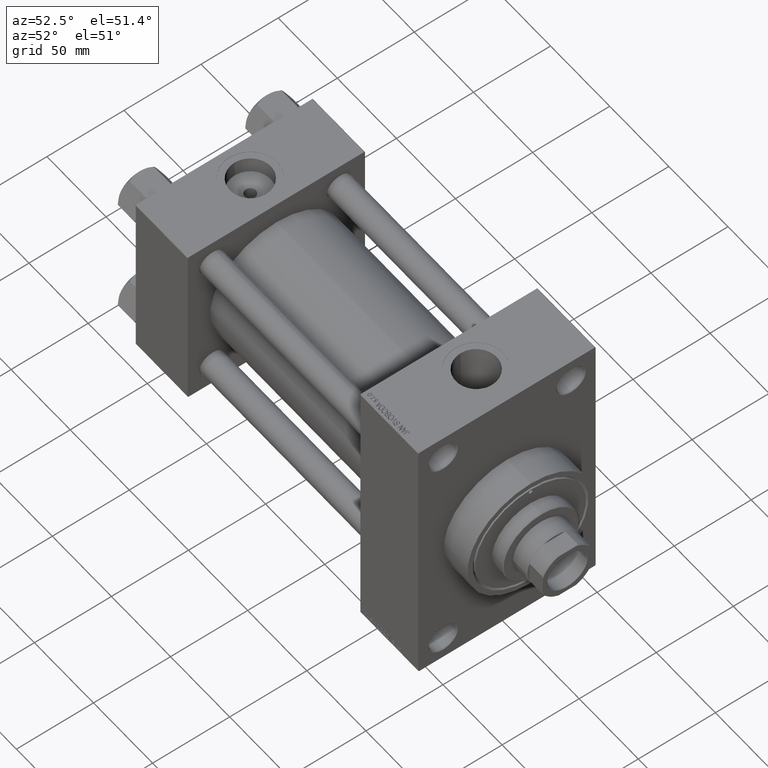
[diagram: clean part render]
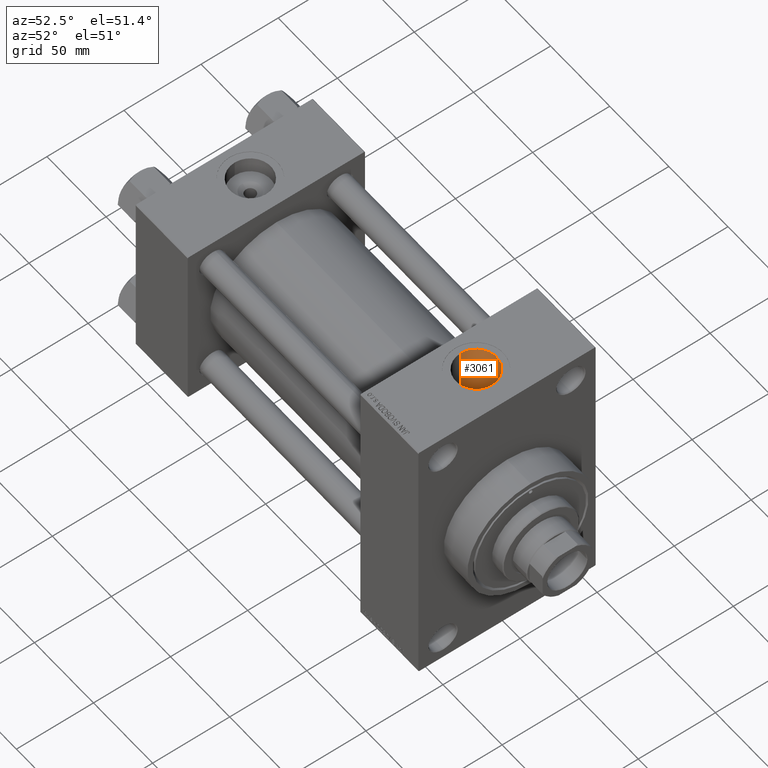
[diagram: same view with one face highlighted and labeled with its STEP entity id]
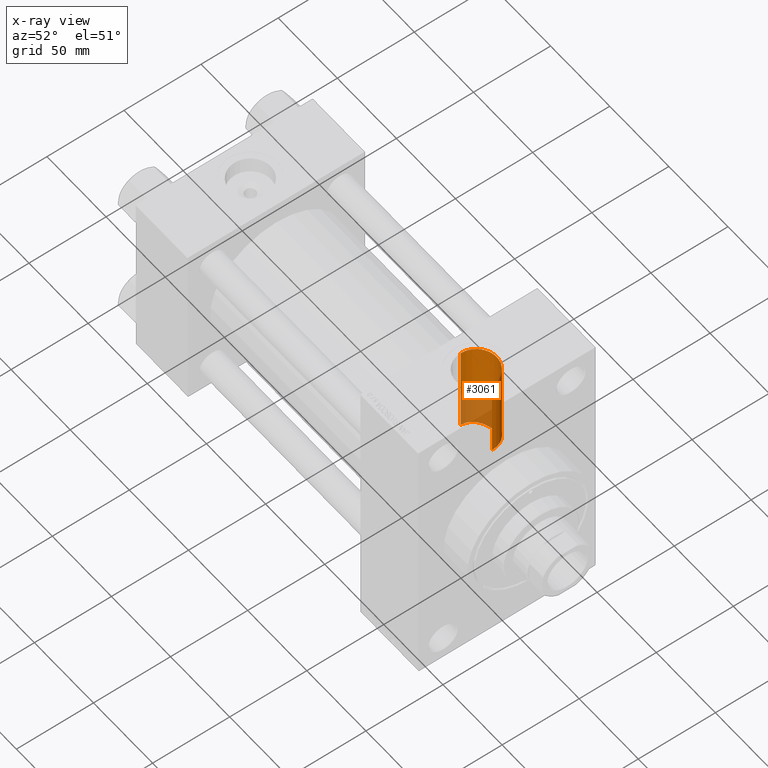
[diagram: x-ray of the same camera — body ghosted, the highlighted face saturated]
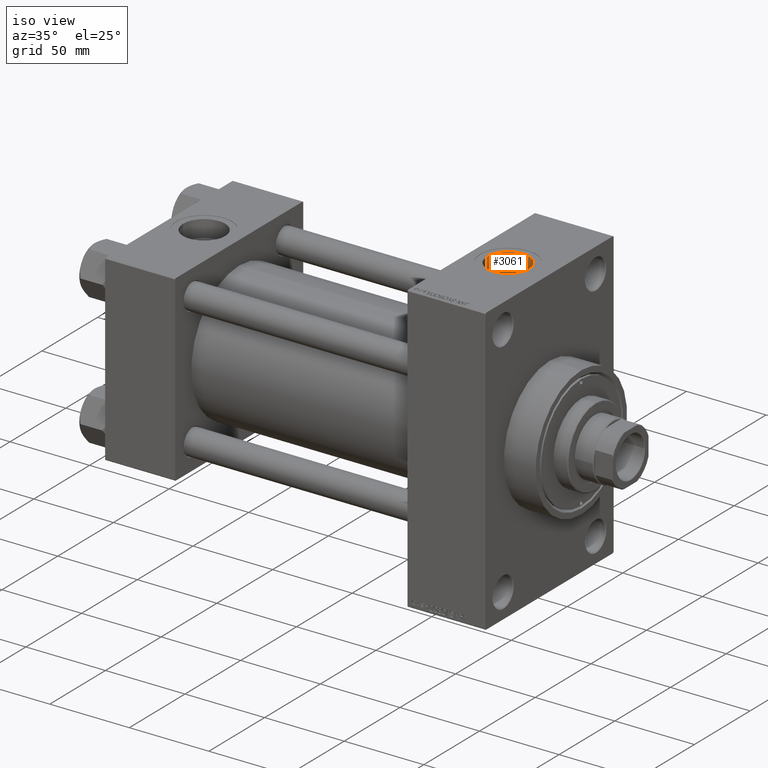
[diagram: same view with one face highlighted and labeled with its STEP entity id]
A machine part, auxiliary view. The second image highlights one B-rep face of the part: STEP entity #3061.
The next image is the same camera in x-ray: the body ghosted, the highlighted face saturated — about 32% of this face is hidden behind the body in this view.
A second angle (iso view) of the same face is appended — the face is thin or edge-on in the first view.
In plain terms, the highlighted cylindrical surface (edge-blend (fillet) strip) has radius 13.22 mm, axis along (0, 0, -1).
Its self-contained STEP definition (entity closure, byte-faithful):
#707 = AXIS2_PLACEMENT_3D ( 'NONE', #43667, #2758, #2994 ) ;
#1189 = CARTESIAN_POINT ( 'NONE',  ( 202.0260244560768399, 7.434870375886687199, 29.59044782374041205 ) ) ;
#2268 = FACE_OUTER_BOUND ( 'NONE', #31749, .T. ) ;
#2705 = CARTESIAN_POINT ( 'NONE',  ( 226.0893087182807903, 1.892035420910294308, 35.95216273564662401 ) ) ;
#2758 = DIRECTION ( 'NONE',  ( -0.000000000000000000, -0.000000000000000000, -1.000000000000000000 ) ) ;
#2994 = DIRECTION ( 'NONE',  ( 1.000000000000000000, 0.000000000000000000, 0.000000000000000000 ) ) ;
#3061 = ADVANCED_FACE ( 'NONE', ( #2268 ), #5890, .F. ) ;
#3654 = CARTESIAN_POINT ( 'NONE',  ( 219.2649626807106245, 11.66558850424321925, 34.06003150599317308 ) ) ;
#5890 = CYLINDRICAL_SURFACE ( 'NONE', #7506, 13.22000000000000952 ) ;
#6193 = ORIENTED_EDGE ( 'NONE', *, *, #19847, .T. ) ;
#6338 = CARTESIAN_POINT ( 'NONE',  ( 226.1379817546421407, 1.518265865167174322, 35.96994912351960494 ) ) ;
#7453 = ORIENTED_EDGE ( 'NONE', *, *, #44952, .F. ) ;
#7506 = AXIS2_PLACEMENT_3D ( 'NONE', #28869, #42940, #28170 ) ;
#7515 = LINE ( 'NONE', #40193, #31736 ) ;
#8272 = CARTESIAN_POINT ( 'NONE',  ( 199.7799999999999443, -1.086087741481131350E-14, 89.79999999999998295 ) ) ;
#8934 = CARTESIAN_POINT ( 'NONE',  ( 204.2896176093950089, 9.956384615881514577, 28.83096279477898349 ) ) ;
#9178 = CARTESIAN_POINT ( 'NONE',  ( 200.6830193899776305, 4.827070409900215076, 30.11922814116230640 ) ) ;
#9211 = CIRCLE ( 'NONE', #707, 13.22000000000000952 ) ;
#9214 = VERTEX_POINT ( 'NONE', #45796 ) ;
#10218 = CARTESIAN_POINT ( 'NONE',  ( 221.9855853527146508, 9.703877399782225410, 34.66842035655219689 ) ) ;
#10442 = CARTESIAN_POINT ( 'NONE',  ( 224.6983450057126959, 6.168928695871307433, 35.46904263421719605 ) ) ;
#10683 = CARTESIAN_POINT ( 'NONE',  ( 216.4867003901545104, 12.77473711426742753, 33.65761171941715446 ) ) ;
#12104 = CARTESIAN_POINT ( 'NONE',  ( 200.3594029954052189, 3.901785162874678026, 30.25300952143917144 ) ) ;
#12581 = CARTESIAN_POINT ( 'NONE',  ( 201.5110741800254175, 6.613878971456276012, 29.78798023624083768 ) ) ;
#12816 = CARTESIAN_POINT ( 'NONE',  ( 199.7799999999999443, 3.735152335644797090E-15, 30.50000000000000000 ) ) ;
#13045 = CARTESIAN_POINT ( 'NONE',  ( 215.7400000000000091, 12.93293470176045723, 27.62225914004863725 ) ) ;
#13053 = CARTESIAN_POINT ( 'NONE',  ( 203.9320074090819332, 9.632030437268104706, 28.94142039359464036 ) ) ;
#13988 = LINE ( 'NONE', #35997, #30147 ) ;
#14086 = CARTESIAN_POINT ( 'NONE',  ( 222.2544909056830136, 9.447833359205578319, 34.73924717178599053 ) ) ;
#14296 = DIRECTION ( 'NONE',  ( 0.000000000000000000, 0.000000000000000000, -1.000000000000000000 ) ) ;
#16673 = CARTESIAN_POINT ( 'NONE',  ( 200.8710626762528761, 5.282033915368379517, 30.04254330308662446 ) ) ;
#17475 = CARTESIAN_POINT ( 'NONE',  ( 215.7400000000000091, 12.93293470176045545, 33.59671412504503252 ) ) ;
#17943 = CARTESIAN_POINT ( 'NONE',  ( 226.2199999999999704, 4.408731805096607676E-15, 36.00000000000000000 ) ) ;
#18534 = VERTEX_POINT ( 'NONE', #31784 ) ;
#18755 = B_SPLINE_CURVE_WITH_KNOTS ( 'NONE', 3,
 ( #17475, #10683, #36821, #43615, #3654, #25446, #39513, #10218, #14086, #35868, #32004, #21337, #21819, #10442, #24747, #25207, #40458, #21575, #36334, #2705, #6338, #47487, #21107, #17943 ),
 .UNSPECIFIED., .F., .F.,
 ( 4, 2, 2, 2, 2, 2, 2, 2, 2, 2, 2, 4 ),
 ( 0.000000000000000000, 0.002262540966026108449, 0.004525081932052216899, 0.006787622898078324481, 0.007918893381091347480, 0.009050163864104371347, 0.01131270483013046245, 0.01244397531314350540, 0.01357524579615655008, 0.01583778676218267067, 0.01696905724519573097, 0.01810032772820879127 ),
 .UNSPECIFIED. ) ;
#18999 = VERTEX_POINT ( 'NONE', #30476 ) ;
#19358 = CARTESIAN_POINT ( 'NONE',  ( 205.4271501200176431, 10.84687044312923021, 28.50745100355763384 ) ) ;
#19593 = CARTESIAN_POINT ( 'NONE',  ( 199.8074965746004636, 0.9872482238805236898, 30.48805017778671100 ) ) ;
#19822 = CARTESIAN_POINT ( 'NONE',  ( 211.8033419719260735, 13.17521242515511304, 27.50761348180683541 ) ) ;
#19847 = EDGE_CURVE ( 'NONE', #9214, #36160, #41770, .T. ) ;
#21107 = CARTESIAN_POINT ( 'NONE',  ( 226.2199999999999136, 0.3819698288429368427, 35.99999999999999289 ) ) ;
#21337 = CARTESIAN_POINT ( 'NONE',  ( 223.7312113704627734, 7.757108125705367563, 35.15943117783078975 ) ) ;
#21565 = EDGE_CURVE ( 'NONE', #43772, #18999, #18755, .T. ) ;
#21575 = CARTESIAN_POINT ( 'NONE',  ( 225.7051556392588338, 3.731388303156857766, 35.81334052950152369 ) ) ;
#21819 = CARTESIAN_POINT ( 'NONE',  ( 224.1498648550291932, 7.141648424859568856, 35.29067191690106142 ) ) ;
#22712 = ORIENTED_EDGE ( 'NONE', *, *, #38599, .T. ) ;
#22989 = CARTESIAN_POINT ( 'NONE',  ( 213.7777193278500079, 13.20633922326214460, 27.49264203546941943 ) ) ;
#23702 = CARTESIAN_POINT ( 'NONE',  ( 206.6661582615323312, 11.61426874580969049, 28.20310319464545401 ) ) ;
#23947 = CARTESIAN_POINT ( 'NONE',  ( 199.7799999999999443, 0.4930897905089567379, 30.50000000000001066 ) ) ;
#24747 = CARTESIAN_POINT ( 'NONE',  ( 224.8678405391318904, 5.836387716606529885, 35.52542343625400889 ) ) ;
#25207 = CARTESIAN_POINT ( 'NONE',  ( 225.1796393711019277, 5.154167772853361029, 35.63079688237382925 ) ) ;
#25446 = CARTESIAN_POINT ( 'NONE',  ( 220.5493998682713084, 10.87852352895255414, 34.31951962323490335 ) ) ;
#26581 = ORIENTED_EDGE ( 'NONE', *, *, #21565, .T. ) ;
#27568 = CARTESIAN_POINT ( 'NONE',  ( 214.7607663062245251, 13.11151955524789159, 27.53798861069348547 ) ) ;
#27808 = CARTESIAN_POINT ( 'NONE',  ( 207.9827127633823807, 12.27015841204416979, 27.92701712990832874 ) ) ;
#28170 = DIRECTION ( 'NONE',  ( -1.000000000000000000, 0.000000000000000000, 0.000000000000000000 ) ) ;
#28869 = CARTESIAN_POINT ( 'NONE',  ( 212.9999999999999716, -1.086087741481131350E-14, 112.7999999999999829 ) ) ;
#29492 = DIRECTION ( 'NONE',  ( 0.000000000000000000, 0.000000000000000000, -1.000000000000000000 ) ) ;
#29991 = CARTESIAN_POINT ( 'NONE',  ( 215.7400000000000091, 12.93293470176045545, 33.59671412504503252 ) ) ;
#30147 = VECTOR ( 'NONE', #32365, 1000.000000000000000 ) ;
#30207 = LINE ( 'NONE', #44989, #41619 ) ;
#30476 = CARTESIAN_POINT ( 'NONE',  ( 226.2199999999999704, 4.408731805096607676E-15, 36.00000000000000000 ) ) ;
#30723 = CARTESIAN_POINT ( 'NONE',  ( 203.2493793498785521, 8.940352169284503603, 29.16250894268882377 ) ) ;
#30963 = CARTESIAN_POINT ( 'NONE',  ( 210.8119409645370581, 13.04724532387755076, 27.56854024737252118 ) ) ;
#31430 = CARTESIAN_POINT ( 'NONE',  ( 202.9260598174467134, 8.574286465039147487, 29.27263374885118452 ) ) ;
#31697 = ORIENTED_EDGE ( 'NONE', *, *, #40003, .F. ) ;
#31736 = VECTOR ( 'NONE', #14296, 1000.000000000000000 ) ;
#31749 = EDGE_LOOP ( 'NONE', ( #43726, #31697, #22712, #6193, #7453, #26581 ) ) ;
#31784 = CARTESIAN_POINT ( 'NONE',  ( 226.2199999999999704, -9.241894346338509984E-15, 89.79999999999998295 ) ) ;
#32004 = CARTESIAN_POINT ( 'NONE',  ( 223.0210832298416506, 8.630590761265704458, 34.95143037011762033 ) ) ;
#32365 = DIRECTION ( 'NONE',  ( 0.000000000000000000, 0.000000000000000000, -1.000000000000000000 ) ) ;
#34589 = CARTESIAN_POINT ( 'NONE',  ( 212.2979727381282657, 13.21057355757992724, 27.49055875873991539 ) ) ;
#34836 = CARTESIAN_POINT ( 'NONE',  ( 200.2233236804503065, 3.430416358514380537, 30.31031417239465497 ) ) ;
#35074 = CARTESIAN_POINT ( 'NONE',  ( 215.2536187678446993, 13.03598049970484318, 27.57401237756086942 ) ) ;
#35868 = CARTESIAN_POINT ( 'NONE',  ( 222.7718099334104522, 8.911727539146765409, 34.88062444271563578 ) ) ;
#35997 = CARTESIAN_POINT ( 'NONE',  ( 215.7400000000000091, 12.93293470176045545, 112.7999999999999829 ) ) ;
#36160 = VERTEX_POINT ( 'NONE', #13045 ) ;
#36334 = CARTESIAN_POINT ( 'NONE',  ( 225.8962416663182466, 3.003490287928876956, 35.88217189229082038 ) ) ;
#36821 = CARTESIAN_POINT ( 'NONE',  ( 217.2060821151613368, 12.55531642788234414, 33.74093801992368924 ) ) ;
#37751 = CARTESIAN_POINT ( 'NONE',  ( 215.7400000000000091, 12.93293470176045723, 27.62225914004863725 ) ) ;
#38000 = CARTESIAN_POINT ( 'NONE',  ( 200.0034013176459382, 2.469744289827837669, 30.40367189608674181 ) ) ;
#38301 = VERTEX_POINT ( 'NONE', #8272 ) ;
#38599 = EDGE_CURVE ( 'NONE', #38301, #9214, #30207, .T. ) ;
#38706 = CARTESIAN_POINT ( 'NONE',  ( 206.2405905081904791, 11.37158902866329413, 28.30223178644141058 ) ) ;
#39513 = CARTESIAN_POINT ( 'NONE',  ( 221.1482271659915000, 10.43671964436601129, 34.45770319535726856 ) ) ;
#40003 = EDGE_CURVE ( 'NONE', #38301, #18534, #9211, .T. ) ;
#40193 = CARTESIAN_POINT ( 'NONE',  ( 226.2199999999999704, -9.241894346338509984E-15, 112.7999999999999829 ) ) ;
#40458 = CARTESIAN_POINT ( 'NONE',  ( 225.3223465543050565, 4.803346231252589860, 35.67993160896550364 ) ) ;
#41619 = VECTOR ( 'NONE', #29492, 1000.000000000000000 ) ;
#41770 = B_SPLINE_CURVE_WITH_KNOTS ( 'NONE', 3,
 ( #12816, #23947, #19593, #45741, #38000, #34836, #12104, #9178, #16673, #12581, #1189, #31430, #30723, #13053, #8934, #45263, #19358, #38706, #23702, #27808, #42334, #41868, #30963, #19822, #34589, #42586, #22989, #27568, #35074, #37751 ),
 .UNSPECIFIED., .F., .F.,
 ( 4, 2, 2, 2, 2, 2, 2, 2, 2, 2, 2, 2, 2, 2, 4 ),
 ( 0.04185757538675116685, 0.04333653936425789499, 0.04481550334176461620, 0.04629446731927134434, 0.04777343129677807249, 0.05073135925179152184, 0.05221032322929827774, 0.05368928720680501976, 0.05516825118431177566, 0.05664721516181852462, 0.05960514311683194622, 0.06108410709433870212, 0.06256307107184545802, 0.06404203504935221392, 0.06552099902685896982 ),
 .UNSPECIFIED. ) ;
#41868 = CARTESIAN_POINT ( 'NONE',  ( 210.3256342958764264, 12.95594869095346091, 27.61177267963251580 ) ) ;
#42334 = CARTESIAN_POINT ( 'NONE',  ( 208.8969839307879965, 12.60537237624627238, 27.77446624569849121 ) ) ;
#42586 = CARTESIAN_POINT ( 'NONE',  ( 213.2851615108020837, 13.22613998524883705, 27.48307289366608686 ) ) ;
#42940 = DIRECTION ( 'NONE',  ( 0.000000000000000000, 0.000000000000000000, -1.000000000000000000 ) ) ;
#43452 = EDGE_CURVE ( 'NONE', #18534, #18999, #7515, .T. ) ;
#43615 = CARTESIAN_POINT ( 'NONE',  ( 218.5945103277782664, 12.00118958920800338, 33.94198458417641717 ) ) ;
#43667 = CARTESIAN_POINT ( 'NONE',  ( 212.9999999999999716, -1.086087741481131350E-14, 89.79999999999998295 ) ) ;
#43726 = ORIENTED_EDGE ( 'NONE', *, *, #43452, .F. ) ;
#43772 = VERTEX_POINT ( 'NONE', #29991 ) ;
#44952 = EDGE_CURVE ( 'NONE', #43772, #36160, #13988, .T. ) ;
#44989 = CARTESIAN_POINT ( 'NONE',  ( 199.7799999999999443, -1.086087741481131350E-14, 112.7999999999999829 ) ) ;
#45263 = CARTESIAN_POINT ( 'NONE',  ( 205.0371891369870525, 10.56380609296693684, 28.61398279029829794 ) ) ;
#45741 = CARTESIAN_POINT ( 'NONE',  ( 199.9192796940201617, 1.977766912824125090, 30.43984725220107634 ) ) ;
#45796 = CARTESIAN_POINT ( 'NONE',  ( 199.7799999999999443, 3.735152335644797090E-15, 30.50000000000000000 ) ) ;
#47487 = CARTESIAN_POINT ( 'NONE',  ( 226.2033327349465708, 0.7640029534827985636, 35.99386990409603726 ) ) ;